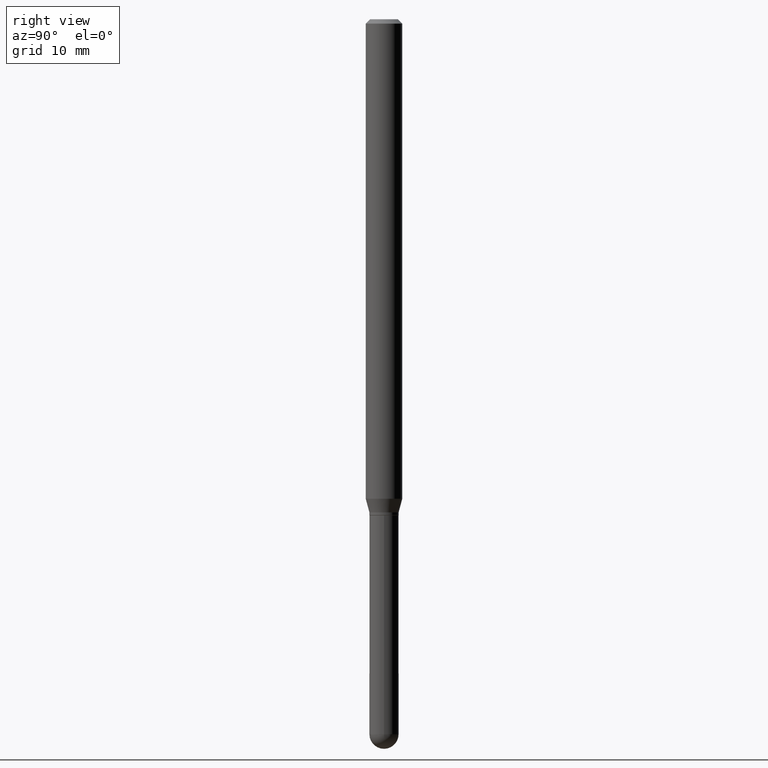
[diagram: clean part render]
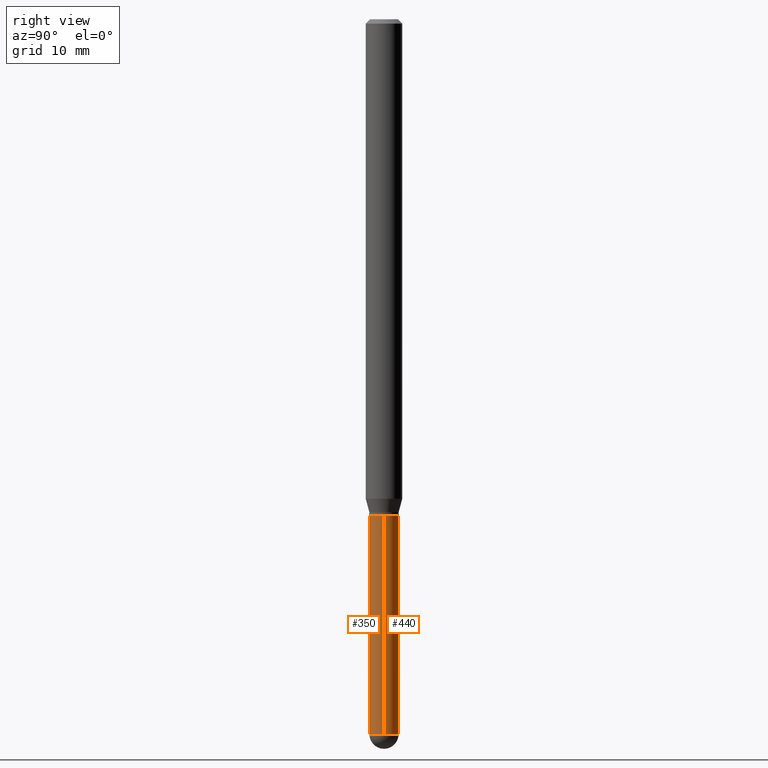
[diagram: same view with one multi-face feature highlighted, each face labeled with its STEP entity id]
A machine part, right view. The highlighted faces form ONE feature: a constant-radius fillet chain: 2 tangent blend faces with common blend radius 1.27 mm. The faces share edges in the B-rep.
Their STEP definitions:
[1] entity #440 (Cylinder):
#2 = VECTOR ( 'NONE', #104, 39.37007874015748143 ) ;
#5 = EDGE_CURVE ( 'NONE', #285, #193, #212, .T. ) ;
#39 = CYLINDRICAL_SURFACE ( 'NONE', #499, 0.04999999999999999584 ) ;
#45 = DIRECTION ( 'NONE',  ( 1.000000000000000000, -6.982962677686255667E-15, 0.000000000000000000 ) ) ;
#61 = CIRCLE ( 'NONE', #214, 0.04999999999999999584 ) ;
#72 = CARTESIAN_POINT ( 'NONE',  ( 5.991398575153583765E-29, -8.554129280165706697E-15, -2.449999999999999734 ) ) ;
#92 = VERTEX_POINT ( 'NONE', #233 ) ;
#98 = CARTESIAN_POINT ( 'NONE',  ( 0.04999999999999999584, -7.593971911983840291E-15, -2.449999999999999734 ) ) ;
#104 = DIRECTION ( 'NONE',  ( -2.445468806185136877E-29, 3.491481338843145188E-15, 1.000000000000000000 ) ) ;
#110 = VECTOR ( 'NONE', #452, 39.37007874015748143 ) ;
#114 = AXIS2_PLACEMENT_3D ( 'NONE', #151, #226, #190 ) ;
#136 = LINE ( 'NONE', #149, #2 ) ;
#137 = CARTESIAN_POINT ( 'NONE',  ( 5.991398575153583765E-29, -8.554129280165706697E-15, -2.449999999999999734 ) ) ;
#149 = CARTESIAN_POINT ( 'NONE',  ( -0.04999999999999999584, 3.552713678800500634E-16, -2.459467545127452961E-30 ) ) ;
#151 = CARTESIAN_POINT ( 'NONE',  ( 4.157296970514732439E-29, -5.935518276033348003E-15, -1.700000000000000178 ) ) ;
#156 = ORIENTED_EDGE ( 'NONE', *, *, #367, .F. ) ;
#165 = FACE_OUTER_BOUND ( 'NONE', #491, .T. ) ;
#167 = VERTEX_POINT ( 'NONE', #492 ) ;
#172 = VERTEX_POINT ( 'NONE', #336 ) ;
#187 = CARTESIAN_POINT ( 'NONE',  ( 0.04999999999999999584, -3.491481338843132862E-16, 2.438088387897967896E-30 ) ) ;
#190 = DIRECTION ( 'NONE',  ( 1.000000000000000000, -6.982962677686274599E-15, 0.000000000000000000 ) ) ;
#193 = VERTEX_POINT ( 'NONE', #329 ) ;
#195 = ORIENTED_EDGE ( 'NONE', *, *, #402, .T. ) ;
#212 = CIRCLE ( 'NONE', #498, 0.04999999999999999584 ) ;
#214 = AXIS2_PLACEMENT_3D ( 'NONE', #72, #317, #45 ) ;
#222 = EDGE_CURVE ( 'NONE', #172, #92, #136, .T. ) ;
#226 = DIRECTION ( 'NONE',  ( -2.445468806185136597E-29, 3.491481338843145583E-15, 1.000000000000000000 ) ) ;
#232 = ORIENTED_EDGE ( 'NONE', *, *, #222, .T. ) ;
#233 = CARTESIAN_POINT ( 'NONE',  ( -0.05000000000000000278, -6.889552410219476547E-15, -1.700000000000000178 ) ) ;
#237 = CARTESIAN_POINT ( 'NONE',  ( 0.000000000000000000, 0.000000000000000000, 0.000000000000000000 ) ) ;
#241 = DIRECTION ( 'NONE',  ( -2.445468806185136597E-29, 3.491481338843145583E-15, 1.000000000000000000 ) ) ;
#251 = EDGE_CURVE ( 'NONE', #285, #167, #253, .T. ) ;
#253 = LINE ( 'NONE', #187, #110 ) ;
#274 = ORIENTED_EDGE ( 'NONE', *, *, #5, .T. ) ;
#275 = DIRECTION ( 'NONE',  ( 1.000000000000000000, -6.982962677686265922E-15, 4.876176775795936353E-29 ) ) ;
#285 = VERTEX_POINT ( 'NONE', #98 ) ;
#317 = DIRECTION ( 'NONE',  ( -2.445468806185136597E-29, 3.491481338843145583E-15, 1.000000000000000000 ) ) ;
#323 = CIRCLE ( 'NONE', #114, 0.05000000000000000278 ) ;
#326 = DIRECTION ( 'NONE',  ( 1.000000000000000000, -6.982962677686255667E-15, 0.000000000000000000 ) ) ;
#329 = CARTESIAN_POINT ( 'NONE',  ( 3.491481338843731903E-16, 0.04999999999999144018, -2.450000000000000178 ) ) ;
#336 = CARTESIAN_POINT ( 'NONE',  ( -0.04999999999999999584, -6.889552410219476547E-15, -2.449999999999999734 ) ) ;
#364 = DIRECTION ( 'NONE',  ( -2.445468806185136597E-29, 3.491481338843145583E-15, 1.000000000000000000 ) ) ;
#367 = EDGE_CURVE ( 'NONE', #167, #92, #323, .T. ) ;
#402 = EDGE_CURVE ( 'NONE', #193, #172, #61, .T. ) ;
#421 = ORIENTED_EDGE ( 'NONE', *, *, #251, .F. ) ;
#440 = ADVANCED_FACE ( 'NONE', ( #165 ), #39, .T. ) ;
#452 = DIRECTION ( 'NONE',  ( -2.445468806185136877E-29, 3.491481338843145188E-15, 1.000000000000000000 ) ) ;
#491 = EDGE_LOOP ( 'NONE', ( #195, #232, #156, #421, #274 ) ) ;
#492 = CARTESIAN_POINT ( 'NONE',  ( 0.05000000000000000278, -6.284666409917661339E-15, -1.700000000000000178 ) ) ;
#498 = AXIS2_PLACEMENT_3D ( 'NONE', #137, #364, #326 ) ;
#499 = AXIS2_PLACEMENT_3D ( 'NONE', #237, #241, #275 ) ;
[2] entity #350 (Cylinder):
#2 = VECTOR ( 'NONE', #104, 39.37007874015748143 ) ;
#6 = EDGE_LOOP ( 'NONE', ( #508, #202, #99, #32, #197 ) ) ;
#19 = DIRECTION ( 'NONE',  ( -2.445468806185136597E-29, 3.491481338843145583E-15, 1.000000000000000000 ) ) ;
#24 = CYLINDRICAL_SURFACE ( 'NONE', #467, 0.04999999999999999584 ) ;
#32 = ORIENTED_EDGE ( 'NONE', *, *, #251, .T. ) ;
#59 = CIRCLE ( 'NONE', #107, 0.05000000000000000278 ) ;
#62 = CIRCLE ( 'NONE', #407, 0.04999999999999999584 ) ;
#66 = EDGE_CURVE ( 'NONE', #172, #78, #200, .T. ) ;
#78 = VERTEX_POINT ( 'NONE', #88 ) ;
#88 = CARTESIAN_POINT ( 'NONE',  ( -3.552713678799901099E-16, -0.05000000000000856537, -2.449999999999999734 ) ) ;
#92 = VERTEX_POINT ( 'NONE', #233 ) ;
#98 = CARTESIAN_POINT ( 'NONE',  ( 0.04999999999999999584, -7.593971911983840291E-15, -2.449999999999999734 ) ) ;
#99 = ORIENTED_EDGE ( 'NONE', *, *, #158, .T. ) ;
#104 = DIRECTION ( 'NONE',  ( -2.445468806185136877E-29, 3.491481338843145188E-15, 1.000000000000000000 ) ) ;
#107 = AXIS2_PLACEMENT_3D ( 'NONE', #207, #318, #471 ) ;
#110 = VECTOR ( 'NONE', #452, 39.37007874015748143 ) ;
#136 = LINE ( 'NONE', #149, #2 ) ;
#139 = EDGE_CURVE ( 'NONE', #92, #167, #59, .T. ) ;
#146 = CARTESIAN_POINT ( 'NONE',  ( 5.991398575153583765E-29, -8.554129280165706697E-15, -2.449999999999999734 ) ) ;
#149 = CARTESIAN_POINT ( 'NONE',  ( -0.04999999999999999584, 3.552713678800500634E-16, -2.459467545127452961E-30 ) ) ;
#158 = EDGE_CURVE ( 'NONE', #78, #285, #62, .T. ) ;
#167 = VERTEX_POINT ( 'NONE', #492 ) ;
#172 = VERTEX_POINT ( 'NONE', #336 ) ;
#183 = DIRECTION ( 'NONE',  ( 1.000000000000000000, -6.982962677686255667E-15, 0.000000000000000000 ) ) ;
#185 = DIRECTION ( 'NONE',  ( -2.445468806185136597E-29, 3.491481338843145583E-15, 1.000000000000000000 ) ) ;
#187 = CARTESIAN_POINT ( 'NONE',  ( 0.04999999999999999584, -3.491481338843132862E-16, 2.438088387897967896E-30 ) ) ;
#197 = ORIENTED_EDGE ( 'NONE', *, *, #139, .F. ) ;
#200 = CIRCLE ( 'NONE', #488, 0.04999999999999999584 ) ;
#202 = ORIENTED_EDGE ( 'NONE', *, *, #66, .T. ) ;
#207 = CARTESIAN_POINT ( 'NONE',  ( 4.157296970514732439E-29, -5.935518276033348003E-15, -1.700000000000000178 ) ) ;
#222 = EDGE_CURVE ( 'NONE', #172, #92, #136, .T. ) ;
#233 = CARTESIAN_POINT ( 'NONE',  ( -0.05000000000000000278, -6.889552410219476547E-15, -1.700000000000000178 ) ) ;
#251 = EDGE_CURVE ( 'NONE', #285, #167, #253, .T. ) ;
#253 = LINE ( 'NONE', #187, #110 ) ;
#285 = VERTEX_POINT ( 'NONE', #98 ) ;
#301 = DIRECTION ( 'NONE',  ( 1.000000000000000000, -6.982962677686255667E-15, 0.000000000000000000 ) ) ;
#318 = DIRECTION ( 'NONE',  ( -2.445468806185136597E-29, 3.491481338843145583E-15, 1.000000000000000000 ) ) ;
#336 = CARTESIAN_POINT ( 'NONE',  ( -0.04999999999999999584, -6.889552410219476547E-15, -2.449999999999999734 ) ) ;
#350 = ADVANCED_FACE ( 'NONE', ( #381 ), #24, .T. ) ;
#374 = CARTESIAN_POINT ( 'NONE',  ( 5.991398575153583765E-29, -8.554129280165706697E-15, -2.449999999999999734 ) ) ;
#381 = FACE_OUTER_BOUND ( 'NONE', #6, .T. ) ;
#407 = AXIS2_PLACEMENT_3D ( 'NONE', #146, #185, #301 ) ;
#414 = DIRECTION ( 'NONE',  ( 1.000000000000000000, -6.982962677686265922E-15, 4.876176775795936353E-29 ) ) ;
#420 = CARTESIAN_POINT ( 'NONE',  ( 0.000000000000000000, 0.000000000000000000, 0.000000000000000000 ) ) ;
#452 = DIRECTION ( 'NONE',  ( -2.445468806185136877E-29, 3.491481338843145188E-15, 1.000000000000000000 ) ) ;
#454 = DIRECTION ( 'NONE',  ( -2.445468806185136597E-29, 3.491481338843145583E-15, 1.000000000000000000 ) ) ;
#467 = AXIS2_PLACEMENT_3D ( 'NONE', #420, #454, #414 ) ;
#471 = DIRECTION ( 'NONE',  ( 1.000000000000000000, -6.982962677686274599E-15, 0.000000000000000000 ) ) ;
#488 = AXIS2_PLACEMENT_3D ( 'NONE', #374, #19, #183 ) ;
#492 = CARTESIAN_POINT ( 'NONE',  ( 0.05000000000000000278, -6.284666409917661339E-15, -1.700000000000000178 ) ) ;
#508 = ORIENTED_EDGE ( 'NONE', *, *, #222, .F. ) ;